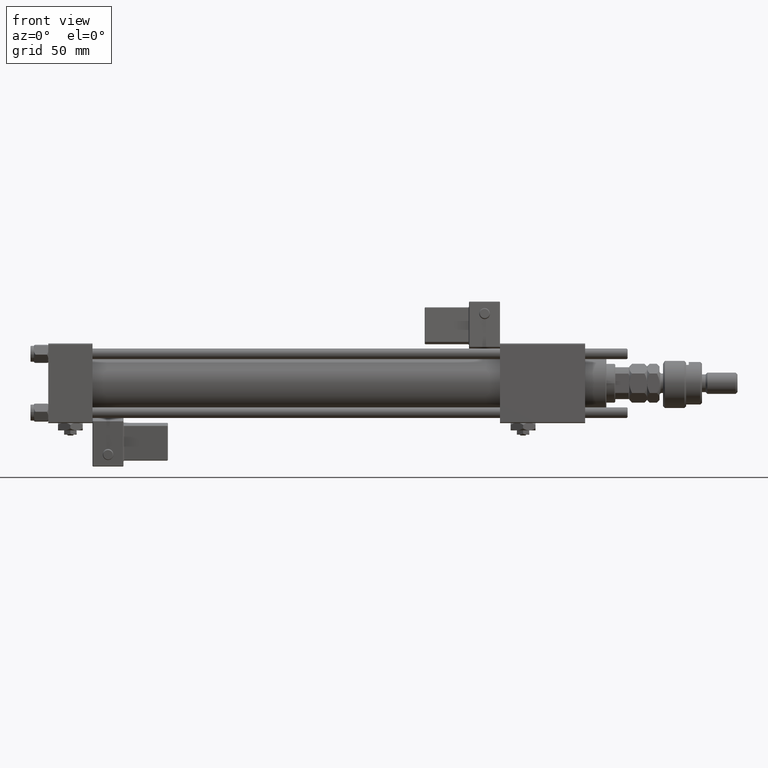
[diagram: clean part render]
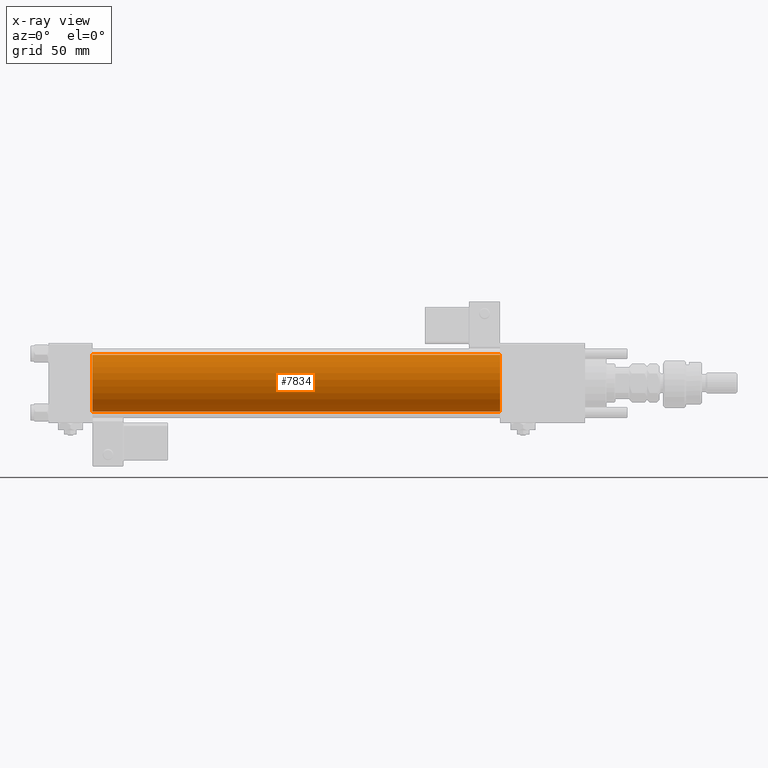
[diagram: x-ray — body ghosted, one internal face saturated and labeled with its STEP entity id]
A machine part, front view, then the same camera in x-ray: the body is ghosted and one INTERNAL B-rep face — a face not visible from any outside direction — is saturated and labeled: STEP entity #7834.
In plain terms, the highlighted cylindrical surface (edge-blend (fillet) strip) has radius 16 mm, axis along (-1, -0, -0).
Its self-contained STEP definition (entity closure, byte-faithful):
#1910 = DIRECTION ( 'NONE',  ( -1.000000000000000000, -0.000000000000000000, -0.000000000000000000 ) ) ;
#1987 = DIRECTION ( 'NONE',  ( 1.000000000000000000, 0.000000000000000000, 0.000000000000000000 ) ) ;
#2853 = AXIS2_PLACEMENT_3D ( 'NONE', #4607, #52777, #43719 ) ;
#3175 = CYLINDRICAL_SURFACE ( 'NONE', #18821, 16.00000000000000000 ) ;
#3432 = VERTEX_POINT ( 'NONE', #26254 ) ;
#3523 = VERTEX_POINT ( 'NONE', #3581 ) ;
#3581 = CARTESIAN_POINT ( 'NONE',  ( 25.00000000000000000, -2.602085213965210642E-15, 16.00000000000000000 ) ) ;
#4607 = CARTESIAN_POINT ( 'NONE',  ( 255.0000000000000000, -2.602085213965210642E-15, 0.000000000000000000 ) ) ;
#5346 = AXIS2_PLACEMENT_3D ( 'NONE', #60823, #1987, #20741 ) ;
#5823 = ORIENTED_EDGE ( 'NONE', *, *, #35943, .T. ) ;
#6308 = LINE ( 'NONE', #6946, #38940 ) ;
#6946 = CARTESIAN_POINT ( 'NONE',  ( 255.0000000000000000, -6.426503353294456087E-16, -16.00000000000000000 ) ) ;
#7535 = EDGE_CURVE ( 'NONE', #3523, #25920, #19840, .T. ) ;
#7834 = ADVANCED_FACE ( 'NONE', ( #46167 ), #3175, .F. ) ;
#8331 = CARTESIAN_POINT ( 'NONE',  ( 255.0000000000000000, -6.426503353294456087E-16, -16.00000000000000000 ) ) ;
#10114 = ORIENTED_EDGE ( 'NONE', *, *, #37979, .F. ) ;
#14712 = DIRECTION ( 'NONE',  ( -1.000000000000000000, -0.000000000000000000, -0.000000000000000000 ) ) ;
#18821 = AXIS2_PLACEMENT_3D ( 'NONE', #51977, #1910, #42594 ) ;
#19840 = CIRCLE ( 'NONE', #5346, 16.00000000000000000 ) ;
#20741 = DIRECTION ( 'NONE',  ( 0.000000000000000000, 0.000000000000000000, -1.000000000000000000 ) ) ;
#21554 = VERTEX_POINT ( 'NONE', #8331 ) ;
#25920 = VERTEX_POINT ( 'NONE', #49306 ) ;
#26254 = CARTESIAN_POINT ( 'NONE',  ( 255.0000000000000000, -2.602085213965210642E-15, 16.00000000000000000 ) ) ;
#30985 = EDGE_CURVE ( 'NONE', #21554, #25920, #6308, .T. ) ;
#31559 = ORIENTED_EDGE ( 'NONE', *, *, #7535, .F. ) ;
#33913 = VECTOR ( 'NONE', #14712, 1000.000000000000000 ) ;
#34107 = CARTESIAN_POINT ( 'NONE',  ( 255.0000000000000000, -2.602085213965210642E-15, 16.00000000000000000 ) ) ;
#35943 = EDGE_CURVE ( 'NONE', #3432, #21554, #38977, .T. ) ;
#36413 = EDGE_LOOP ( 'NONE', ( #5823, #39414, #31559, #10114 ) ) ;
#37979 = EDGE_CURVE ( 'NONE', #3432, #3523, #58989, .T. ) ;
#38940 = VECTOR ( 'NONE', #61905, 1000.000000000000000 ) ;
#38977 = CIRCLE ( 'NONE', #2853, 16.00000000000000000 ) ;
#39414 = ORIENTED_EDGE ( 'NONE', *, *, #30985, .T. ) ;
#42594 = DIRECTION ( 'NONE',  ( 0.000000000000000000, 0.000000000000000000, 1.000000000000000000 ) ) ;
#43719 = DIRECTION ( 'NONE',  ( 0.000000000000000000, 0.000000000000000000, -1.000000000000000000 ) ) ;
#46167 = FACE_OUTER_BOUND ( 'NONE', #36413, .T. ) ;
#49306 = CARTESIAN_POINT ( 'NONE',  ( 25.00000000000000000, -6.426503353294456087E-16, -16.00000000000000000 ) ) ;
#51977 = CARTESIAN_POINT ( 'NONE',  ( 255.0000000000000000, -2.602085213965210642E-15, 0.000000000000000000 ) ) ;
#52777 = DIRECTION ( 'NONE',  ( 1.000000000000000000, 0.000000000000000000, 0.000000000000000000 ) ) ;
#58989 = LINE ( 'NONE', #34107, #33913 ) ;
#60823 = CARTESIAN_POINT ( 'NONE',  ( 25.00000000000000000, -2.602085213965210642E-15, 0.000000000000000000 ) ) ;
#61905 = DIRECTION ( 'NONE',  ( -1.000000000000000000, -0.000000000000000000, -0.000000000000000000 ) ) ;